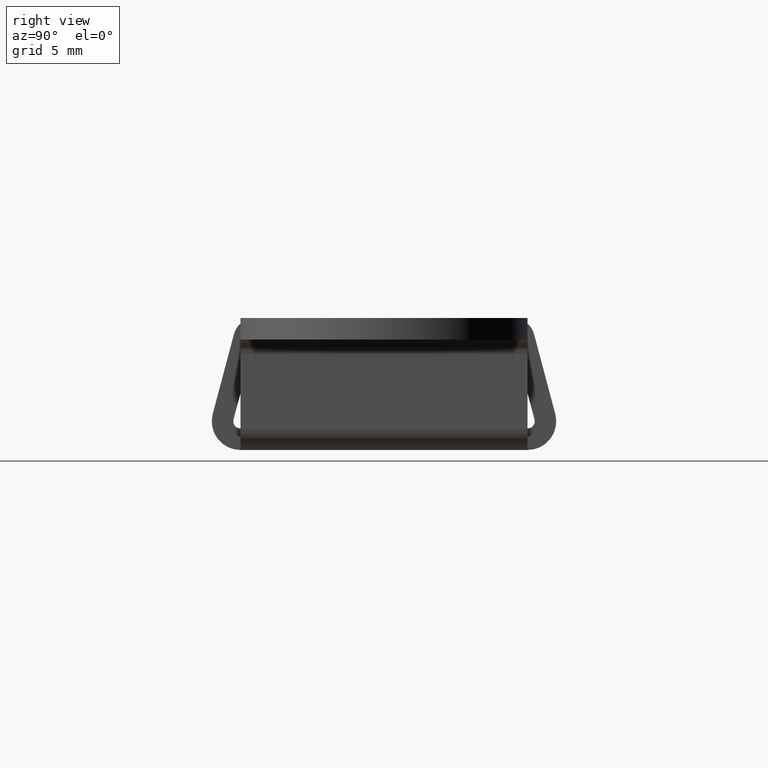
[diagram: clean part render]
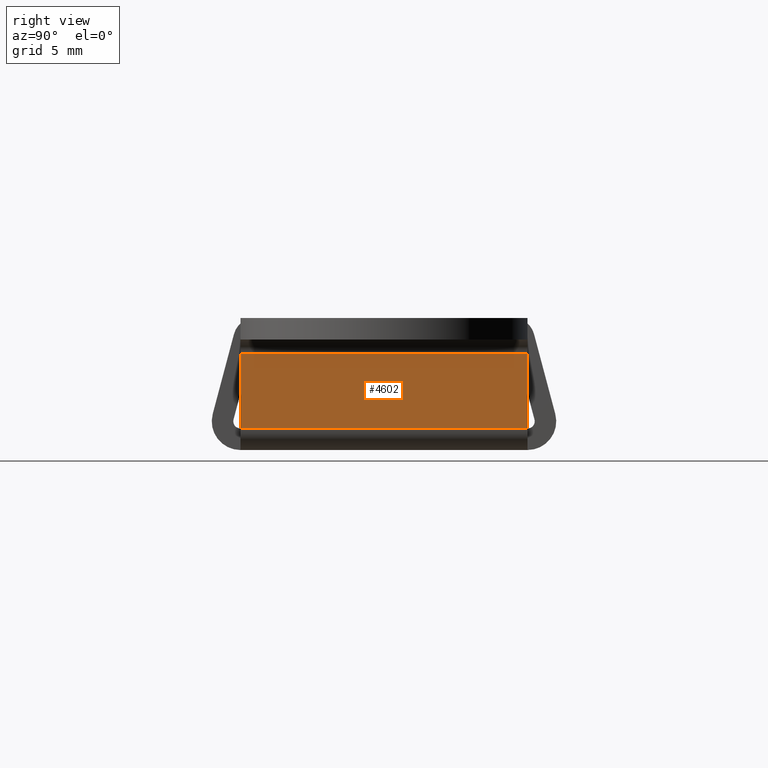
[diagram: same view with one face highlighted and labeled with its STEP entity id]
A machine part, right view. The second image highlights one B-rep face of the part: STEP entity #4602.
In plain terms, the highlighted planar face has unit normal (1, 0, 0).
Its self-contained STEP definition (entity closure, byte-faithful):
#11 = VERTEX_POINT ( 'NONE', #4385 ) ;
#477 = LINE ( 'NONE', #4184, #4514 ) ;
#699 = DIRECTION ( 'NONE',  ( 0.0000000000000000000, 1.000000000000000000, 0.0000000000000000000 ) ) ;
#721 = CARTESIAN_POINT ( 'NONE',  ( 10.50000000000000000, -10.00000000000000000, 1.500000000000000000 ) ) ;
#736 = FACE_OUTER_BOUND ( 'NONE', #3682, .T. ) ;
#854 = ORIENTED_EDGE ( 'NONE', *, *, #3732, .F. ) ;
#925 = AXIS2_PLACEMENT_3D ( 'NONE', #4657, #5197, #2032 ) ;
#972 = PLANE ( 'NONE',  #925 ) ;
#1202 = ORIENTED_EDGE ( 'NONE', *, *, #6448, .T. ) ;
#1237 = CARTESIAN_POINT ( 'NONE',  ( 10.50000000000000000, 10.00000000000000000, 1.500000000000000000 ) ) ;
#1305 = VECTOR ( 'NONE', #1983, 1000.000000000000000 ) ;
#1416 = CARTESIAN_POINT ( 'NONE',  ( 10.50000000000000000, -10.00000000000000000, 6.699999999989020500 ) ) ;
#1762 = EDGE_CURVE ( 'NONE', #11, #6471, #477, .T. ) ;
#1983 = DIRECTION ( 'NONE',  ( 0.0000000000000000000, 0.0000000000000000000, -1.000000000000000000 ) ) ;
#2032 = DIRECTION ( 'NONE',  ( 0.0000000000000000000, 0.0000000000000000000, -1.000000000000000000 ) ) ;
#2078 = DIRECTION ( 'NONE',  ( 0.0000000000000000000, 0.0000000000000000000, -1.000000000000000000 ) ) ;
#2132 = LINE ( 'NONE', #5129, #6173 ) ;
#2535 = VECTOR ( 'NONE', #699, 1000.000000000000000 ) ;
#2887 = LINE ( 'NONE', #6195, #1305 ) ;
#3398 = ORIENTED_EDGE ( 'NONE', *, *, #4818, .T. ) ;
#3682 = EDGE_LOOP ( 'NONE', ( #5815, #854, #3398, #1202 ) ) ;
#3732 = EDGE_CURVE ( 'NONE', #6504, #11, #2132, .T. ) ;
#4184 = CARTESIAN_POINT ( 'NONE',  ( 10.50000000000000000, 10.00000000000000000, 6.699999999989020500 ) ) ;
#4385 = CARTESIAN_POINT ( 'NONE',  ( 10.50000000000000000, 10.00000000000000000, 6.699999999989020500 ) ) ;
#4514 = VECTOR ( 'NONE', #2078, 1000.000000000000000 ) ;
#4592 = DIRECTION ( 'NONE',  ( 0.0000000000000000000, 1.000000000000000000, 0.0000000000000000000 ) ) ;
#4602 = ADVANCED_FACE ( 'NONE', ( #736 ), #972, .T. ) ;
#4657 = CARTESIAN_POINT ( 'NONE',  ( 10.50000000000000000, -12.00000000000000000, 7.219999999987920500 ) ) ;
#4818 = EDGE_CURVE ( 'NONE', #6504, #6460, #2887, .T. ) ;
#5129 = CARTESIAN_POINT ( 'NONE',  ( 10.50000000000000000, -10.00000000000000000, 6.699999999989020500 ) ) ;
#5197 = DIRECTION ( 'NONE',  ( 1.000000000000000000, 0.0000000000000000000, 0.0000000000000000000 ) ) ;
#5323 = LINE ( 'NONE', #5946, #2535 ) ;
#5815 = ORIENTED_EDGE ( 'NONE', *, *, #1762, .F. ) ;
#5946 = CARTESIAN_POINT ( 'NONE',  ( 10.50000000000000000, -10.00000000000000000, 1.500000000000000000 ) ) ;
#6173 = VECTOR ( 'NONE', #4592, 1000.000000000000000 ) ;
#6195 = CARTESIAN_POINT ( 'NONE',  ( 10.50000000000000000, -10.00000000000000000, 6.699999999989020500 ) ) ;
#6448 = EDGE_CURVE ( 'NONE', #6460, #6471, #5323, .T. ) ;
#6460 = VERTEX_POINT ( 'NONE', #721 ) ;
#6471 = VERTEX_POINT ( 'NONE', #1237 ) ;
#6504 = VERTEX_POINT ( 'NONE', #1416 ) ;